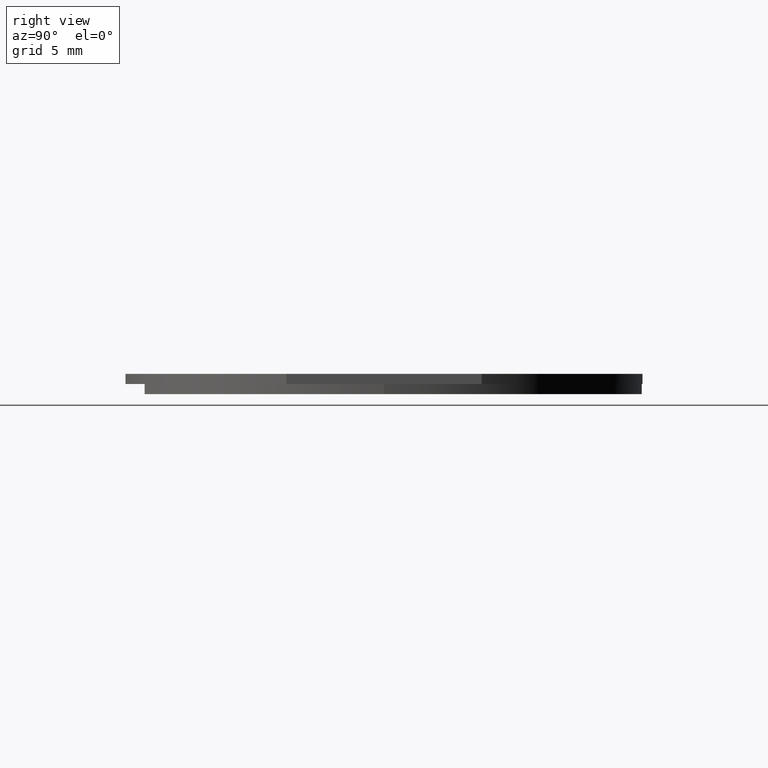
[diagram: clean part render]
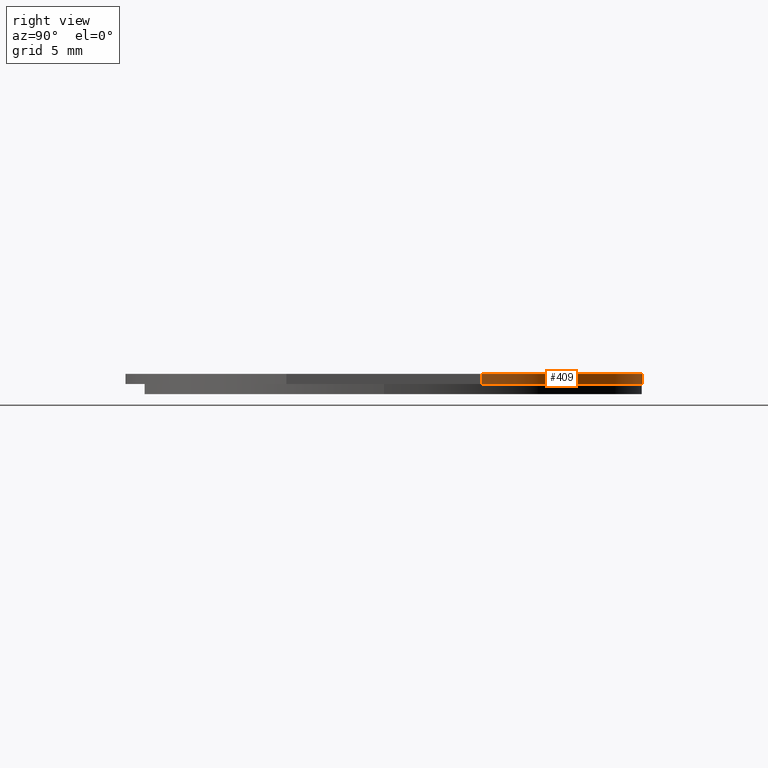
[diagram: same view with one face highlighted and labeled with its STEP entity id]
A machine part, right view. The second image highlights one B-rep face of the part: STEP entity #409.
In plain terms, the highlighted cylindrical surface (partial cylindrical patch) has radius 12.7 mm, axis along (0, -0, -1).
Its self-contained STEP definition (entity closure, byte-faithful):
#3 = VERTEX_POINT ( 'NONE', #303 ) ;
#14 = DIRECTION ( 'NONE',  ( -1.365923996832131609E-16, -1.000000000000000000, 0.0000000000000000000 ) ) ;
#24 = DIRECTION ( 'NONE',  ( 0.0000000000000000000, -0.0000000000000000000, -1.000000000000000000 ) ) ;
#38 = CARTESIAN_POINT ( 'NONE',  ( 23.93957565082418171, 3.965136488717075469, 4.486184743181586221 ) ) ;
#42 = VERTEX_POINT ( 'NONE', #308 ) ;
#52 = VECTOR ( 'NONE', #453, 1000.000000000000000 ) ;
#86 = LINE ( 'NONE', #38, #52 ) ;
#109 = DIRECTION ( 'NONE',  ( 0.0000000000000000000, 0.0000000000000000000, 1.000000000000000000 ) ) ;
#118 = CARTESIAN_POINT ( 'NONE',  ( 12.17957565082418014, 11.87009738564398553, 4.486184743181586221 ) ) ;
#151 = CARTESIAN_POINT ( 'NONE',  ( 12.17957565082418014, -0.8299026143560144231, 3.986184743181585777 ) ) ;
#162 = AXIS2_PLACEMENT_3D ( 'NONE', #526, #188, #14 ) ;
#167 = ORIENTED_EDGE ( 'NONE', *, *, #406, .T. ) ;
#172 = VERTEX_POINT ( 'NONE', #433 ) ;
#188 = DIRECTION ( 'NONE',  ( 0.0000000000000000000, -0.0000000000000000000, -1.000000000000000000 ) ) ;
#215 = VERTEX_POINT ( 'NONE', #360 ) ;
#218 = EDGE_CURVE ( 'NONE', #172, #3, #513, .T. ) ;
#228 = AXIS2_PLACEMENT_3D ( 'NONE', #535, #436, #321 ) ;
#269 = VECTOR ( 'NONE', #24, 1000.000000000000000 ) ;
#274 = FACE_OUTER_BOUND ( 'NONE', #512, .T. ) ;
#277 = EDGE_CURVE ( 'NONE', #3, #215, #493, .T. ) ;
#303 = CARTESIAN_POINT ( 'NONE',  ( 12.17957565082418014, 11.87009738564398553, 4.486184743181586221 ) ) ;
#308 = CARTESIAN_POINT ( 'NONE',  ( 23.93957565082418171, 3.965136488717076357, 3.986184743181585777 ) ) ;
#321 = DIRECTION ( 'NONE',  ( 1.365923996832131609E-16, 1.000000000000000000, 0.0000000000000000000 ) ) ;
#331 = ORIENTED_EDGE ( 'NONE', *, *, #542, .T. ) ;
#344 = AXIS2_PLACEMENT_3D ( 'NONE', #151, #109, #359 ) ;
#359 = DIRECTION ( 'NONE',  ( 1.365923996832131609E-16, 1.000000000000000000, 0.0000000000000000000 ) ) ;
#360 = CARTESIAN_POINT ( 'NONE',  ( 12.17957565082418014, 11.87009738564398553, 3.986184743181585777 ) ) ;
#362 = CYLINDRICAL_SURFACE ( 'NONE', #162, 12.69999999999999929 ) ;
#377 = ORIENTED_EDGE ( 'NONE', *, *, #218, .F. ) ;
#406 = EDGE_CURVE ( 'NONE', #42, #215, #416, .T. ) ;
#409 = ADVANCED_FACE ( 'NONE', ( #274 ), #362, .T. ) ;
#416 = CIRCLE ( 'NONE', #344, 12.69999999999999929 ) ;
#433 = CARTESIAN_POINT ( 'NONE',  ( 23.93957565082418171, 3.965136488717076357, 4.486184743181586221 ) ) ;
#436 = DIRECTION ( 'NONE',  ( 0.0000000000000000000, 0.0000000000000000000, 1.000000000000000000 ) ) ;
#453 = DIRECTION ( 'NONE',  ( 0.0000000000000000000, -0.0000000000000000000, -1.000000000000000000 ) ) ;
#464 = ORIENTED_EDGE ( 'NONE', *, *, #277, .F. ) ;
#493 = LINE ( 'NONE', #118, #269 ) ;
#512 = EDGE_LOOP ( 'NONE', ( #464, #377, #331, #167 ) ) ;
#513 = CIRCLE ( 'NONE', #228, 12.69999999999999929 ) ;
#526 = CARTESIAN_POINT ( 'NONE',  ( 12.17957565082418014, -0.8299026143560144231, 4.486184743181586221 ) ) ;
#535 = CARTESIAN_POINT ( 'NONE',  ( 12.17957565082418014, -0.8299026143560144231, 4.486184743181586221 ) ) ;
#542 = EDGE_CURVE ( 'NONE', #172, #42, #86, .T. ) ;